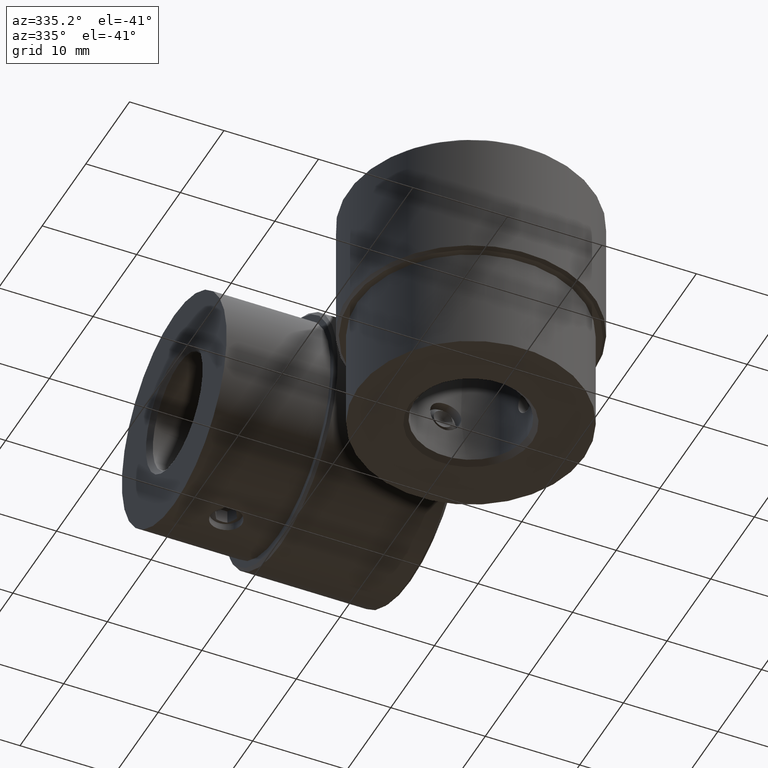
[diagram: clean part render]
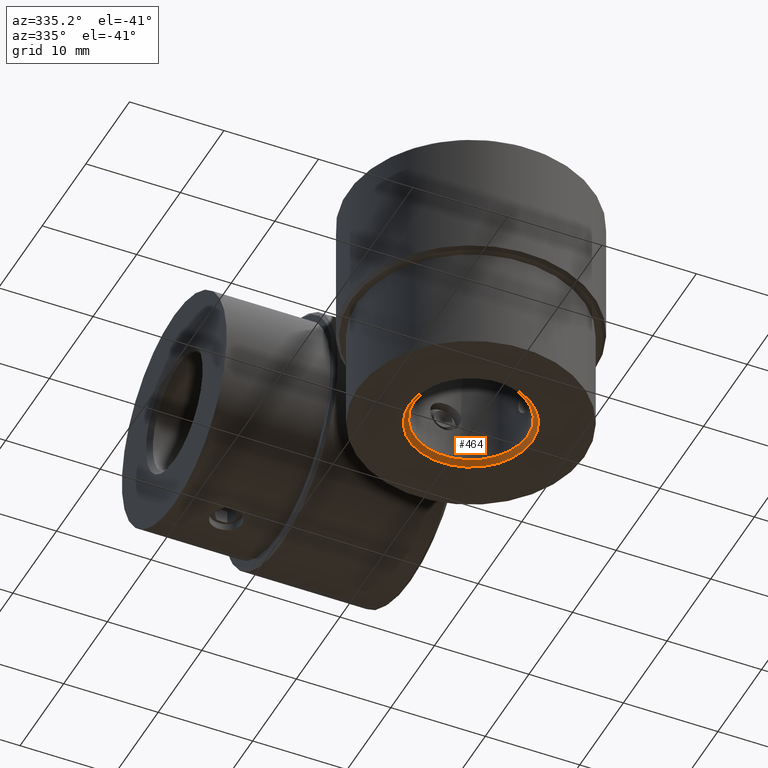
[diagram: same view with one face highlighted and labeled with its STEP entity id]
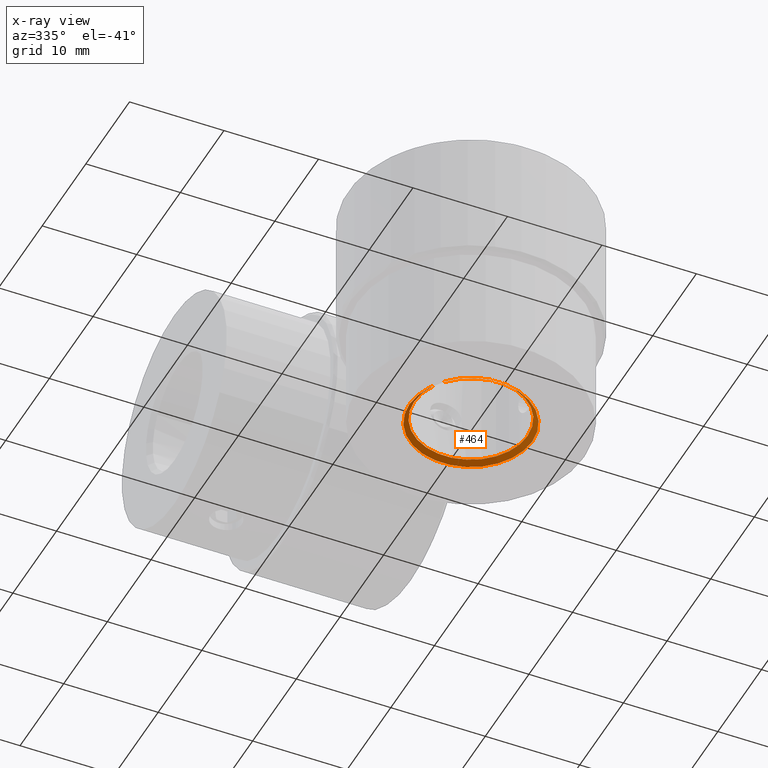
[diagram: x-ray of the same camera — body ghosted, the highlighted face saturated]
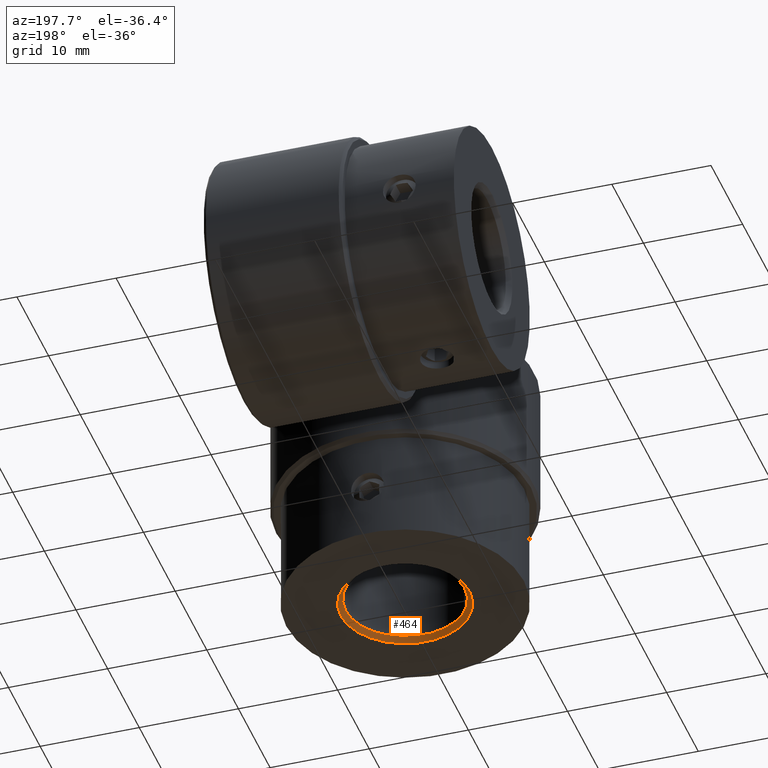
[diagram: same view with one face highlighted and labeled with its STEP entity id]
A machine part, auxiliary view. The second image highlights one B-rep face of the part: STEP entity #464.
The next image is the same camera in x-ray: the body ghosted, the highlighted face saturated — about 0% of this face is hidden behind the body in this view.
A second angle (auxiliary view) of the same face is appended — the face is thin or edge-on in the first view.
In plain terms, the highlighted conical surface has half-angle 45 deg.
Its self-contained STEP definition (entity closure, byte-faithful):
#464 = ADVANCED_FACE( '', ( #575, #576 ), #577, .F. );
#575 = FACE_BOUND( '', #801, .T. );
#576 = FACE_OUTER_BOUND( '', #802, .T. );
#577 = CONICAL_SURFACE( '', #803, 6.50000000000000, 0.785398163397448 );
#801 = EDGE_LOOP( '', ( #1045 ) );
#802 = EDGE_LOOP( '', ( #1046 ) );
#803 = AXIS2_PLACEMENT_3D( '', #1047, #1048, #1049 );
#1045 = ORIENTED_EDGE( '', *, *, #1508, .F. );
#1046 = ORIENTED_EDGE( '', *, *, #1509, .F. );
#1047 = CARTESIAN_POINT( '', ( 0.000000000000000, 0.000000000000000, -25.0000000000000 ) );
#1048 = DIRECTION( '', ( -0.000000000000000, -0.000000000000000, -1.00000000000000 ) );
#1049 = DIRECTION( '', ( -1.00000000000000, 0.000000000000000, 0.000000000000000 ) );
#1508 = EDGE_CURVE( '', #1648, #1648, #1649, .F. );
#1509 = EDGE_CURVE( '', #1650, #1650, #1651, .T. );
#1648 = VERTEX_POINT( '', #2088 );
#1649 = CIRCLE( '', #2089, 6.00000000000000 );
#1650 = VERTEX_POINT( '', #2090 );
#1651 = CIRCLE( '', #2091, 6.50000000000000 );
#2088 = CARTESIAN_POINT( '', ( 6.00000000000000, 0.000000000000000, -24.5000000000000 ) );
#2089 = AXIS2_PLACEMENT_3D( '', #2694, #2695, #2696 );
#2090 = CARTESIAN_POINT( '', ( 6.50000000000000, 0.000000000000000, -25.0000000000000 ) );
#2091 = AXIS2_PLACEMENT_3D( '', #2697, #2698, #2699 );
#2694 = CARTESIAN_POINT( '', ( 0.000000000000000, 0.000000000000000, -24.5000000000000 ) );
#2695 = DIRECTION( '', ( 0.000000000000000, 0.000000000000000, 1.00000000000000 ) );
#2696 = DIRECTION( '', ( 1.00000000000000, 0.000000000000000, -0.000000000000000 ) );
#2697 = CARTESIAN_POINT( '', ( 0.000000000000000, 0.000000000000000, -25.0000000000000 ) );
#2698 = DIRECTION( '', ( 0.000000000000000, 0.000000000000000, 1.00000000000000 ) );
#2699 = DIRECTION( '', ( 1.00000000000000, 0.000000000000000, -0.000000000000000 ) );